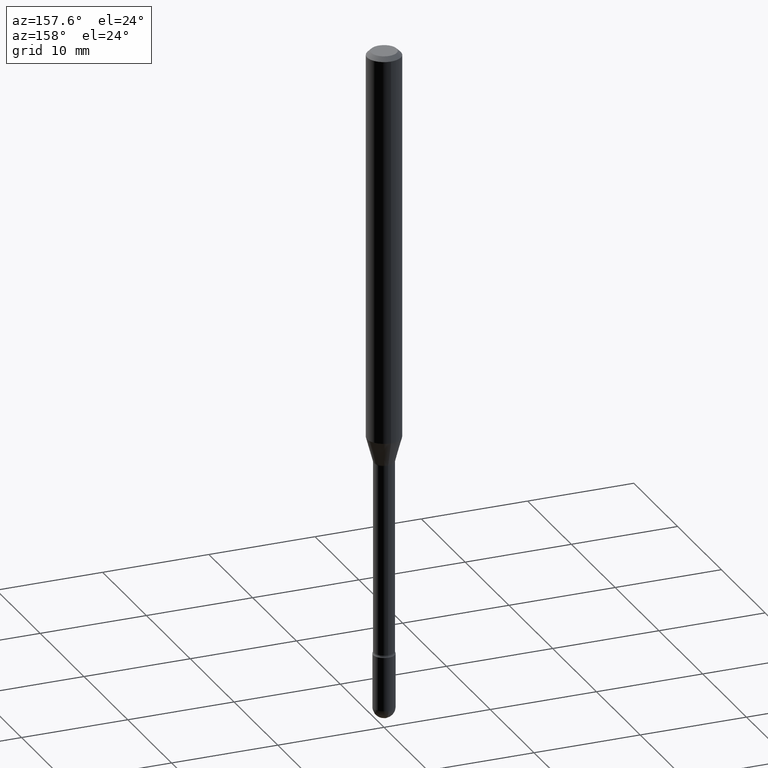
[diagram: clean part render]
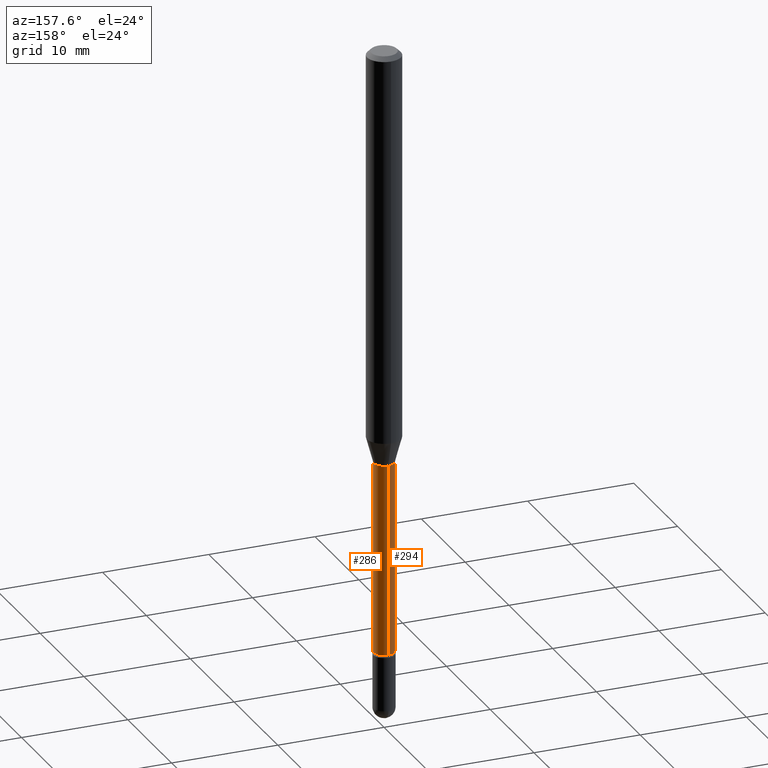
[diagram: same view with one multi-face feature highlighted, each face labeled with its STEP entity id]
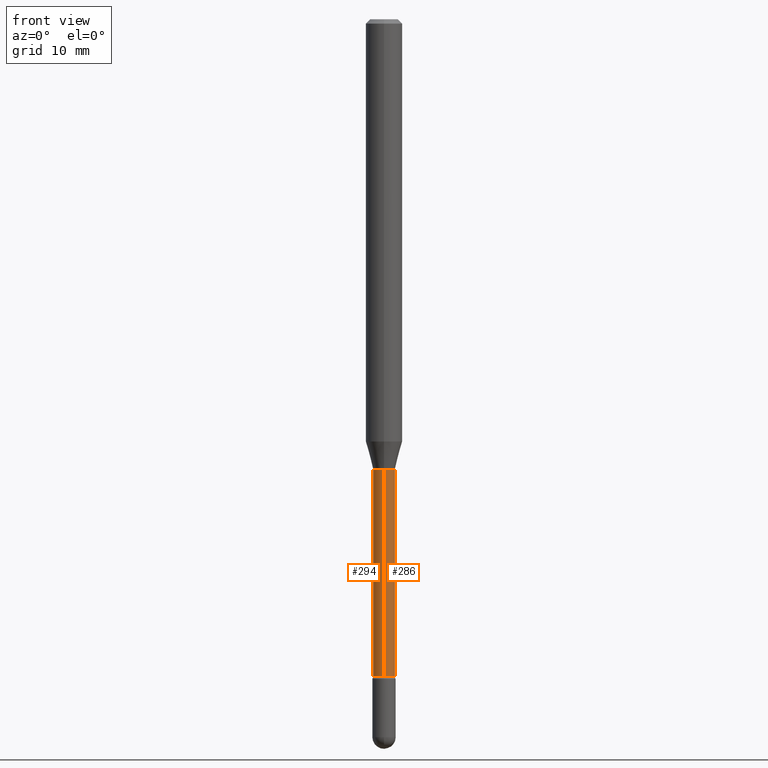
[diagram: same view with one multi-face feature highlighted, each face labeled with its STEP entity id]
A machine part, auxiliary view. The highlighted faces form ONE feature: a constant-radius fillet chain: 2 tangent blend faces with common blend radius 0.955 mm. The faces share edges in the B-rep.
A second angle (front view) of the same feature is appended — it is thin or edge-on in the first view.
Their STEP definitions:
[1] entity #294 (Cylinder):
#22 = DIRECTION ( 'NONE',  ( -2.445453356995440732E-29, 3.491503462962103086E-15, 1.000000000000000000 ) ) ;
#24 = LINE ( 'NONE', #541, #281 ) ;
#39 = VERTEX_POINT ( 'NONE', #235 ) ;
#48 = DIRECTION ( 'NONE',  ( -2.445453356995441012E-29, 3.491503462962102692E-15, 1.000000000000000000 ) ) ;
#61 = AXIS2_PLACEMENT_3D ( 'NONE', #467, #249, #428 ) ;
#67 = EDGE_CURVE ( 'NONE', #185, #486, #24, .T. ) ;
#87 = ORIENTED_EDGE ( 'NONE', *, *, #322, .F. ) ;
#102 = LINE ( 'NONE', #538, #489 ) ;
#117 = CARTESIAN_POINT ( 'NONE',  ( 2.671640686458530486E-16, 0.03759999999999462383, -1.541974787463810781 ) ) ;
#158 = AXIS2_PLACEMENT_3D ( 'NONE', #457, #22, #373 ) ;
#164 = DIRECTION ( 'NONE',  ( -2.445453356995440732E-29, 3.491503462962103086E-15, 1.000000000000000000 ) ) ;
#165 = EDGE_CURVE ( 'NONE', #39, #185, #542, .T. ) ;
#171 = EDGE_CURVE ( 'NONE', #275, #486, #316, .T. ) ;
#180 = CARTESIAN_POINT ( 'NONE',  ( -2.625593966809658857E-16, -0.03760000000000538606, -1.541974787463810781 ) ) ;
#185 = VERTEX_POINT ( 'NONE', #252 ) ;
#235 = CARTESIAN_POINT ( 'NONE',  ( 2.756905814749742978E-16, 0.03759999999999222992, -2.251861204020249918 ) ) ;
#249 = DIRECTION ( 'NONE',  ( -2.445453356995440732E-29, 3.491503462962103086E-15, 1.000000000000000000 ) ) ;
#252 = CARTESIAN_POINT ( 'NONE',  ( -2.625593966809491224E-16, -0.03760000000000795345, -2.251861204020249918 ) ) ;
#257 = CARTESIAN_POINT ( 'NONE',  ( 3.770827420405706512E-29, -5.383810310230147956E-15, -1.541974787463810781 ) ) ;
#275 = VERTEX_POINT ( 'NONE', #117 ) ;
#281 = VECTOR ( 'NONE', #289, 39.37007874015748143 ) ;
#289 = DIRECTION ( 'NONE',  ( -2.445453356995441012E-29, 3.491503462962102692E-15, 1.000000000000000000 ) ) ;
#294 = ADVANCED_FACE ( 'NONE', ( #344 ), #299, .T. ) ;
#299 = CYLINDRICAL_SURFACE ( 'NONE', #61, 0.03760000000000005005 ) ;
#316 = CIRCLE ( 'NONE', #480, 0.03760000000000000148 ) ;
#322 = EDGE_CURVE ( 'NONE', #39, #275, #102, .T. ) ;
#339 = DIRECTION ( 'NONE',  ( -6.982962677686265922E-15, -1.000000000000000000, 0.000000000000000000 ) ) ;
#344 = FACE_OUTER_BOUND ( 'NONE', #523, .T. ) ;
#360 = ORIENTED_EDGE ( 'NONE', *, *, #165, .T. ) ;
#373 = DIRECTION ( 'NONE',  ( -6.982962677686265133E-15, -1.000000000000000000, 0.000000000000000000 ) ) ;
#428 = DIRECTION ( 'NONE',  ( -6.982962677686265922E-15, -1.000000000000000000, 3.491503462962103875E-15 ) ) ;
#457 = CARTESIAN_POINT ( 'NONE',  ( 5.506821540859115378E-29, -7.862381191946714218E-15, -2.251861204020249918 ) ) ;
#467 = CARTESIAN_POINT ( 'NONE',  ( -1.169113584055446105E-44, 1.669184350826100908E-30, 4.780733988912460139E-16 ) ) ;
#480 = AXIS2_PLACEMENT_3D ( 'NONE', #257, #164, #339 ) ;
#485 = ORIENTED_EDGE ( 'NONE', *, *, #67, .T. ) ;
#486 = VERTEX_POINT ( 'NONE', #180 ) ;
#489 = VECTOR ( 'NONE', #48, 39.37007874015748143 ) ;
#523 = EDGE_LOOP ( 'NONE', ( #87, #360, #485, #555 ) ) ;
#538 = CARTESIAN_POINT ( 'NONE',  ( 2.671640686457979762E-16, 0.03760000000000005005, 3.467928686838708128E-16 ) ) ;
#541 = CARTESIAN_POINT ( 'NONE',  ( -2.625593966810039482E-16, -0.03760000000000005005, 6.093539290986213137E-16 ) ) ;
#542 = CIRCLE ( 'NONE', #158, 0.03760000000000009168 ) ;
#555 = ORIENTED_EDGE ( 'NONE', *, *, #171, .F. ) ;
[2] entity #286 (Cylinder):
#11 = AXIS2_PLACEMENT_3D ( 'NONE', #565, #493, #365 ) ;
#24 = LINE ( 'NONE', #541, #281 ) ;
#30 = DIRECTION ( 'NONE',  ( -2.445453356995440732E-29, 3.491503462962103086E-15, 1.000000000000000000 ) ) ;
#39 = VERTEX_POINT ( 'NONE', #235 ) ;
#40 = DIRECTION ( 'NONE',  ( -6.982962677686265922E-15, -1.000000000000000000, 0.000000000000000000 ) ) ;
#48 = DIRECTION ( 'NONE',  ( -2.445453356995441012E-29, 3.491503462962102692E-15, 1.000000000000000000 ) ) ;
#67 = EDGE_CURVE ( 'NONE', #185, #486, #24, .T. ) ;
#102 = LINE ( 'NONE', #538, #489 ) ;
#117 = CARTESIAN_POINT ( 'NONE',  ( 2.671640686458530486E-16, 0.03759999999999462383, -1.541974787463810781 ) ) ;
#135 = ORIENTED_EDGE ( 'NONE', *, *, #322, .T. ) ;
#160 = DIRECTION ( 'NONE',  ( -6.982962677686265922E-15, -1.000000000000000000, 3.491503462962103875E-15 ) ) ;
#180 = CARTESIAN_POINT ( 'NONE',  ( -2.625593966809658857E-16, -0.03760000000000538606, -1.541974787463810781 ) ) ;
#185 = VERTEX_POINT ( 'NONE', #252 ) ;
#202 = CYLINDRICAL_SURFACE ( 'NONE', #543, 0.03760000000000005005 ) ;
#235 = CARTESIAN_POINT ( 'NONE',  ( 2.756905814749742978E-16, 0.03759999999999222992, -2.251861204020249918 ) ) ;
#247 = EDGE_CURVE ( 'NONE', #486, #275, #515, .T. ) ;
#252 = CARTESIAN_POINT ( 'NONE',  ( -2.625593966809491224E-16, -0.03760000000000795345, -2.251861204020249918 ) ) ;
#275 = VERTEX_POINT ( 'NONE', #117 ) ;
#281 = VECTOR ( 'NONE', #289, 39.37007874015748143 ) ;
#286 = ADVANCED_FACE ( 'NONE', ( #424 ), #202, .T. ) ;
#289 = DIRECTION ( 'NONE',  ( -2.445453356995441012E-29, 3.491503462962102692E-15, 1.000000000000000000 ) ) ;
#314 = ORIENTED_EDGE ( 'NONE', *, *, #479, .T. ) ;
#322 = EDGE_CURVE ( 'NONE', #39, #275, #102, .T. ) ;
#328 = CIRCLE ( 'NONE', #11, 0.03760000000000009168 ) ;
#347 = DIRECTION ( 'NONE',  ( -2.445453356995440732E-29, 3.491503462962103086E-15, 1.000000000000000000 ) ) ;
#365 = DIRECTION ( 'NONE',  ( -6.982962677686265133E-15, -1.000000000000000000, 0.000000000000000000 ) ) ;
#421 = CARTESIAN_POINT ( 'NONE',  ( 3.770827420405706512E-29, -5.383810310230147956E-15, -1.541974787463810781 ) ) ;
#424 = FACE_OUTER_BOUND ( 'NONE', #537, .T. ) ;
#429 = ORIENTED_EDGE ( 'NONE', *, *, #67, .F. ) ;
#446 = ORIENTED_EDGE ( 'NONE', *, *, #247, .F. ) ;
#479 = EDGE_CURVE ( 'NONE', #185, #39, #328, .T. ) ;
#486 = VERTEX_POINT ( 'NONE', #180 ) ;
#489 = VECTOR ( 'NONE', #48, 39.37007874015748143 ) ;
#493 = DIRECTION ( 'NONE',  ( -2.445453356995440732E-29, 3.491503462962103086E-15, 1.000000000000000000 ) ) ;
#515 = CIRCLE ( 'NONE', #560, 0.03760000000000000148 ) ;
#537 = EDGE_LOOP ( 'NONE', ( #314, #135, #446, #429 ) ) ;
#538 = CARTESIAN_POINT ( 'NONE',  ( 2.671640686457979762E-16, 0.03760000000000005005, 3.467928686838708128E-16 ) ) ;
#541 = CARTESIAN_POINT ( 'NONE',  ( -2.625593966810039482E-16, -0.03760000000000005005, 6.093539290986213137E-16 ) ) ;
#543 = AXIS2_PLACEMENT_3D ( 'NONE', #551, #30, #160 ) ;
#551 = CARTESIAN_POINT ( 'NONE',  ( -1.169113584055446105E-44, 1.669184350826100908E-30, 4.780733988912460139E-16 ) ) ;
#560 = AXIS2_PLACEMENT_3D ( 'NONE', #421, #347, #40 ) ;
#565 = CARTESIAN_POINT ( 'NONE',  ( 5.506821540859115378E-29, -7.862381191946714218E-15, -2.251861204020249918 ) ) ;